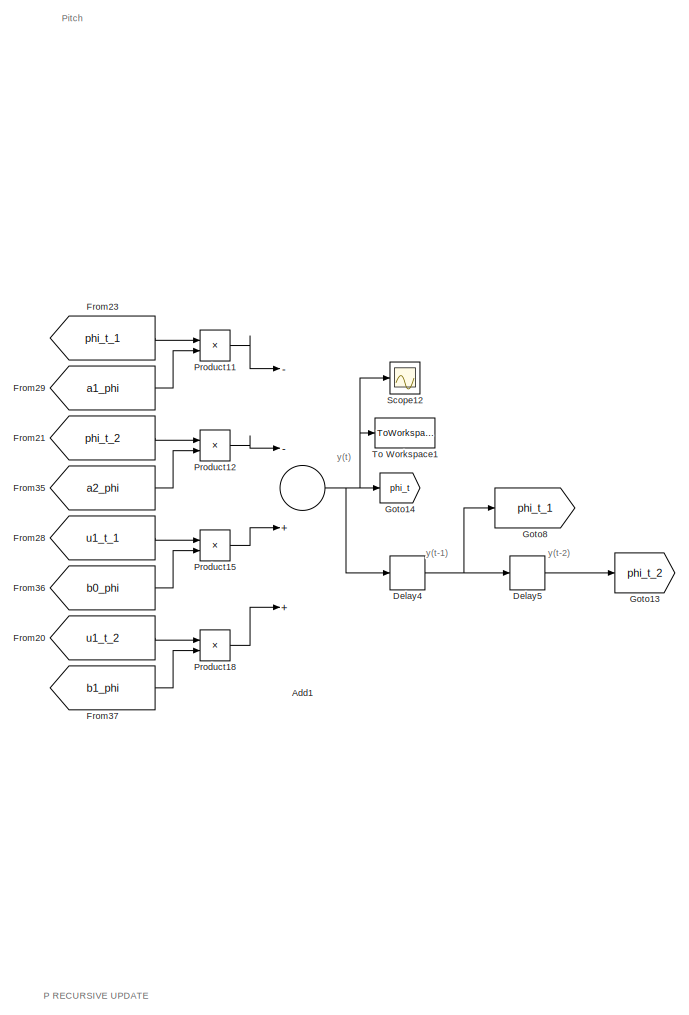
[diagram: root canvas - part 1/5, top center region]
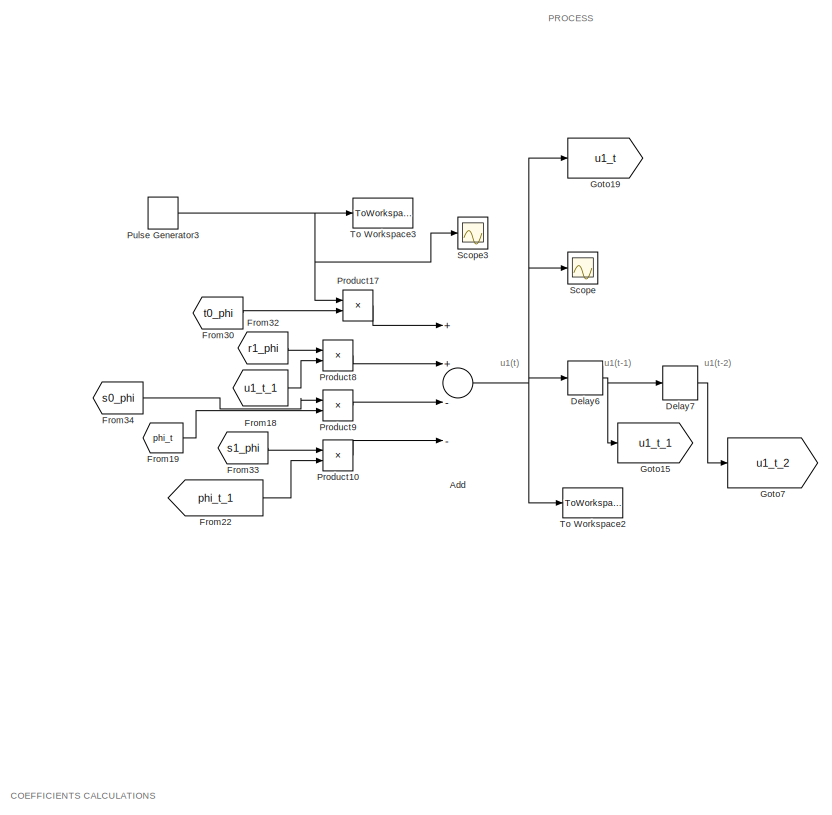
[diagram: root canvas - part 2/5, top left region]
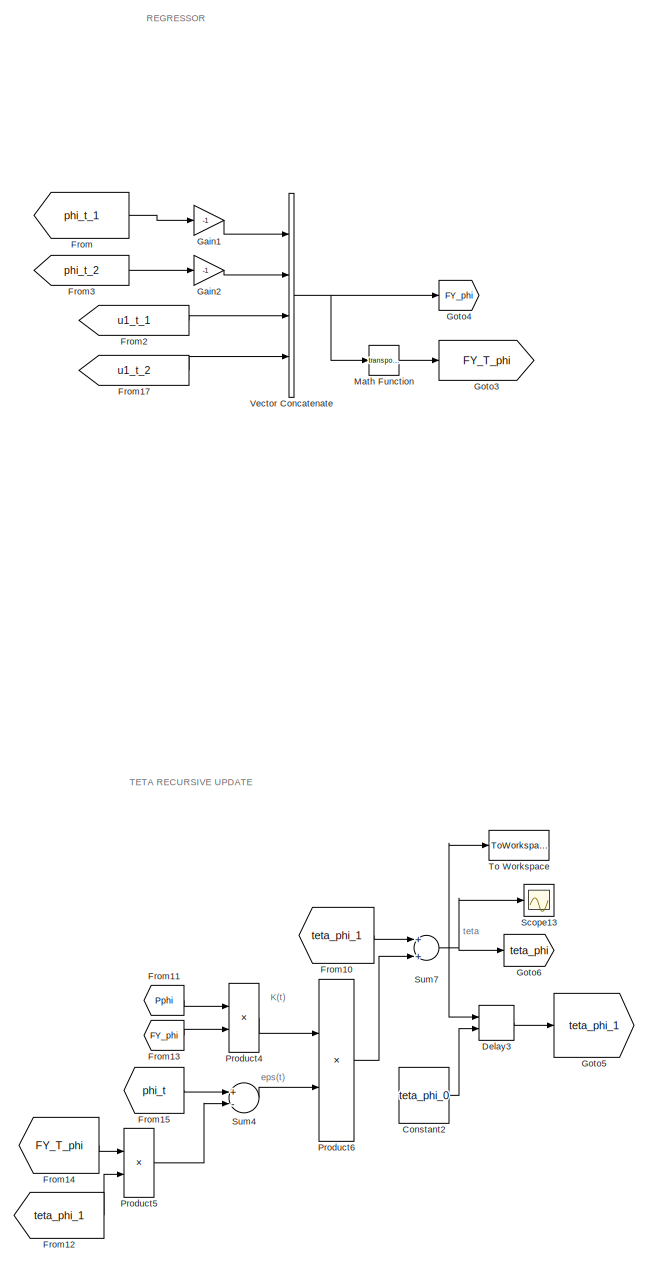
[diagram: root canvas - part 3/5, middle right region]
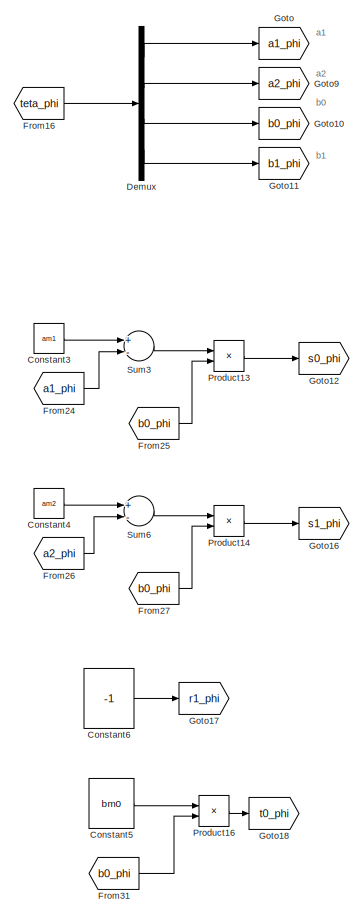
[diagram: root canvas - part 4/5, bottom left region]
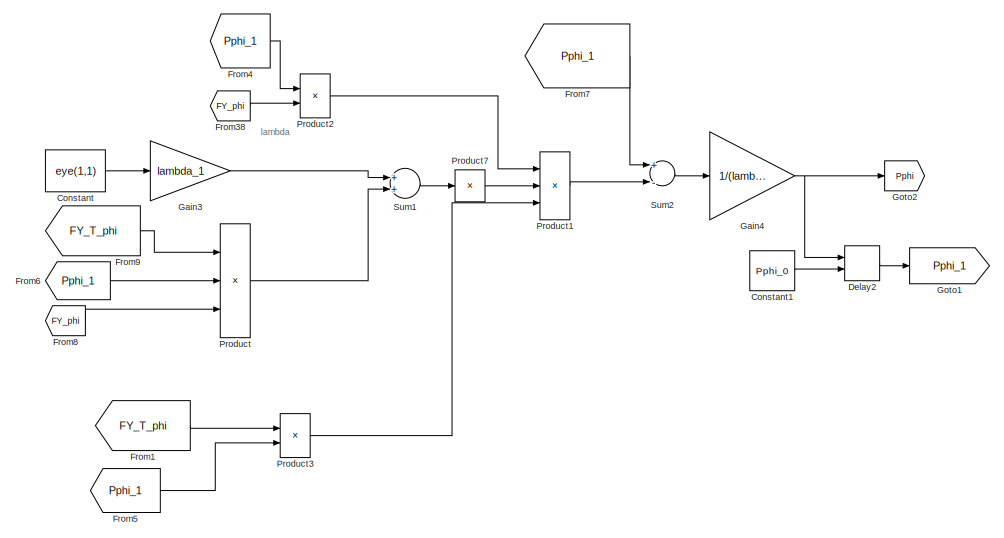
[diagram: root canvas - part 5/5, bottom center region]
MODEL slx_b9793fe7c534
KIND model
CONFIG AbsTol = auto
CONFIG EnableMultiTasking = off
CONFIG FixedStep = 10e-3
CONFIG MaxStep = auto
CONFIG MinStep = auto
CONFIG RelTol = 1e-3
CONFIG SampleTimeConstraint = Unconstrained
CONFIG Solver = VariableStepAuto
CONFIG SolverName = VariableStepAuto
CONFIG StartTime = 0.0
CONFIG StopTime = 100
BLOCK [Sum] Add
  InputSameDT = off
  Inputs = ++--
  OutDataTypeStr = Inherit: Inherit via internal rule
  Ports = [4, 1]
  SaturateOnIntegerOverflow = off
BLOCK [Sum] Add1
  InputSameDT = off
  Inputs = --++
  OutDataTypeStr = Inherit: Inherit via internal rule
  Ports = [4, 1]
  SaturateOnIntegerOverflow = off
BLOCK [Constant] Constant
  Value = eye(1,1)
BLOCK [Constant] Constant1
  Value = Pphi_0
BLOCK [Constant] Constant2
  Value = teta_phi_0
BLOCK [Constant] Constant3
  Value = am1
BLOCK [Constant] Constant4
  Value = am2
BLOCK [Constant] Constant5
  Value = bm0
BLOCK [Constant] Constant6
  Value = -1
BLOCK [Delay] Delay2
  DelayLength = 1
  InitialCondition = 0
  InitialConditionSource = Input port
  InputPortMap = u0,p4
  Ports = [2, 1]
BLOCK [Delay] Delay3
  DelayLength = 1
  InitialCondition = 0
  InitialConditionSource = Input port
  InputPortMap = u0,p4
  Ports = [2, 1]
BLOCK [Delay] Delay4
  DelayLength = 1
  InitialCondition = 0
  InputPortMap = u0
  Ports = [1, 1]
BLOCK [Delay] Delay5
  DelayLength = 1
  InitialCondition = 0
  InputPortMap = u0
  Ports = [1, 1]
BLOCK [Delay] Delay6
  DelayLength = 1
  InitialCondition = 0
  InputPortMap = u0
  Ports = [1, 1]
BLOCK [Delay] Delay7
  DelayLength = 1
  InitialCondition = 0
  InputPortMap = u0
  Ports = [1, 1]
BLOCK [Demux] Demux
  DisplayOption = bar
  Ports = [1, 4]
BLOCK [From] From
  GotoTag = phi_t_1
BLOCK [From] From1
  GotoTag = FY_T_phi
BLOCK [From] From10
  GotoTag = teta_phi_1
BLOCK [From] From11
  GotoTag = Pphi
BLOCK [From] From12
  GotoTag = teta_phi_1
BLOCK [From] From13
  GotoTag = FY_phi
BLOCK [From] From14
  GotoTag = FY_T_phi
BLOCK [From] From15
  GotoTag = phi_t
BLOCK [From] From16
  GotoTag = teta_phi
BLOCK [From] From17
  GotoTag = u1_t_2
BLOCK [From] From18
  GotoTag = u1_t_1
BLOCK [From] From19
  GotoTag = phi_t
BLOCK [From] From2
  GotoTag = u1_t_1
BLOCK [From] From20
  GotoTag = u1_t_2
BLOCK [From] From21
  GotoTag = phi_t_2
BLOCK [From] From22
  GotoTag = phi_t_1
BLOCK [From] From23
  GotoTag = phi_t_1
BLOCK [From] From24
  GotoTag = a1_phi
BLOCK [From] From25
  GotoTag = b0_phi
BLOCK [From] From26
  GotoTag = a2_phi
BLOCK [From] From27
  GotoTag = b0_phi
BLOCK [From] From28
  GotoTag = u1_t_1
BLOCK [From] From29
  GotoTag = a1_phi
BLOCK [From] From3
  GotoTag = phi_t_2
BLOCK [From] From30
  GotoTag = t0_phi
BLOCK [From] From31
  GotoTag = b0_phi
BLOCK [From] From32
  GotoTag = r1_phi
BLOCK [From] From33
  GotoTag = s1_phi
BLOCK [From] From34
  GotoTag = s0_phi
BLOCK [From] From35
  GotoTag = a2_phi
BLOCK [From] From36
  GotoTag = b0_phi
BLOCK [From] From37
  GotoTag = b1_phi
BLOCK [From] From38
  GotoTag = FY_phi
BLOCK [From] From4
  GotoTag = Pphi_1
BLOCK [From] From5
  GotoTag = Pphi_1
BLOCK [From] From6
  GotoTag = Pphi_1
BLOCK [From] From7
  GotoTag = Pphi_1
BLOCK [From] From8
  GotoTag = FY_phi
BLOCK [From] From9
  GotoTag = FY_T_phi
BLOCK [Gain] Gain1
  Gain = -1
  OutDataTypeStr = Inherit: Inherit via internal rule
  ParamDataTypeStr = Inherit: Inherit via internal rule
  SaturateOnIntegerOverflow = off
BLOCK [Gain] Gain2
  Gain = -1
  OutDataTypeStr = Inherit: Inherit via internal rule
  ParamDataTypeStr = Inherit: Inherit via internal rule
  SaturateOnIntegerOverflow = off
BLOCK [Gain] Gain3
  Gain = lambda_1
  OutDataTypeStr = Inherit: Inherit via internal rule
  ParamDataTypeStr = Inherit: Inherit via internal rule
  SaturateOnIntegerOverflow = off
BLOCK [Gain] Gain4
  Gain = 1/(lambda_1)
  OutDataTypeStr = Inherit: Inherit via internal rule
  ParamDataTypeStr = Inherit: Inherit via internal rule
  SaturateOnIntegerOverflow = off
BLOCK [Goto] Goto
  GotoTag = a1_phi
BLOCK [Goto] Goto1
  GotoTag = Pphi_1
BLOCK [Goto] Goto10
  GotoTag = b0_phi
BLOCK [Goto] Goto11
  GotoTag = b1_phi
BLOCK [Goto] Goto12
  GotoTag = s0_phi
BLOCK [Goto] Goto13
  GotoTag = phi_t_2
BLOCK [Goto] Goto14
  GotoTag = phi_t
BLOCK [Goto] Goto15
  GotoTag = u1_t_1
BLOCK [Goto] Goto16
  GotoTag = s1_phi
BLOCK [Goto] Goto17
  GotoTag = r1_phi
BLOCK [Goto] Goto18
  GotoTag = t0_phi
BLOCK [Goto] Goto19
  GotoTag = u1_t
BLOCK [Goto] Goto2
  GotoTag = Pphi
BLOCK [Goto] Goto3
  GotoTag = FY_T_phi
BLOCK [Goto] Goto4
  GotoTag = FY_phi
BLOCK [Goto] Goto5
  GotoTag = teta_phi_1
BLOCK [Goto] Goto6
  GotoTag = teta_phi
BLOCK [Goto] Goto7
  GotoTag = u1_t_2
BLOCK [Goto] Goto8
  GotoTag = phi_t_1
BLOCK [Goto] Goto9
  GotoTag = a2_phi
BLOCK [Math] Math Function
  Operator = transpose
  Ports = [1, 1]
BLOCK [Product] Product
  InputSameDT = off
  Inputs = 3
  Multiplication = Matrix(*)
  OutDataTypeStr = Inherit: Inherit via internal rule
  Ports = [3, 1]
  RndMeth = Floor
  SaturateOnIntegerOverflow = off
BLOCK [Product] Product1
  InputSameDT = off
  Inputs = 3
  Multiplication = Matrix(*)
  OutDataTypeStr = Inherit: Inherit via internal rule
  Ports = [3, 1]
  RndMeth = Floor
  SaturateOnIntegerOverflow = off
BLOCK [Product] Product10
  InputSameDT = off
  OutDataTypeStr = Inherit: Inherit via internal rule
  Ports = [2, 1]
  RndMeth = Floor
  SaturateOnIntegerOverflow = off
BLOCK [Product] Product11
  InputSameDT = off
  OutDataTypeStr = Inherit: Inherit via internal rule
  Ports = [2, 1]
  RndMeth = Floor
  SaturateOnIntegerOverflow = off
BLOCK [Product] Product12
  InputSameDT = off
  OutDataTypeStr = Inherit: Inherit via internal rule
  Ports = [2, 1]
  RndMeth = Floor
  SaturateOnIntegerOverflow = off
BLOCK [Product] Product13
  InputSameDT = off
  Inputs = */
  OutDataTypeStr = Inherit: Inherit via internal rule
  Ports = [2, 1]
  RndMeth = Floor
  SaturateOnIntegerOverflow = off
BLOCK [Product] Product14
  InputSameDT = off
  Inputs = */
  OutDataTypeStr = Inherit: Inherit via internal rule
  Ports = [2, 1]
  RndMeth = Floor
  SaturateOnIntegerOverflow = off
BLOCK [Product] Product15
  InputSameDT = off
  OutDataTypeStr = Inherit: Inherit via internal rule
  Ports = [2, 1]
  RndMeth = Floor
  SaturateOnIntegerOverflow = off
BLOCK [Product] Product16
  InputSameDT = off
  Inputs = */
  OutDataTypeStr = Inherit: Inherit via internal rule
  Ports = [2, 1]
  RndMeth = Floor
  SaturateOnIntegerOverflow = off
BLOCK [Product] Product17
  InputSameDT = off
  OutDataTypeStr = Inherit: Inherit via internal rule
  Ports = [2, 1]
  RndMeth = Floor
  SaturateOnIntegerOverflow = off
BLOCK [Product] Product18
  InputSameDT = off
  OutDataTypeStr = Inherit: Inherit via internal rule
  Ports = [2, 1]
  RndMeth = Floor
  SaturateOnIntegerOverflow = off
BLOCK [Product] Product2
  InputSameDT = off
  Multiplication = Matrix(*)
  OutDataTypeStr = Inherit: Inherit via internal rule
  Ports = [2, 1]
  RndMeth = Floor
  SaturateOnIntegerOverflow = off
BLOCK [Product] Product3
  InputSameDT = off
  Multiplication = Matrix(*)
  OutDataTypeStr = Inherit: Inherit via internal rule
  Ports = [2, 1]
  RndMeth = Floor
  SaturateOnIntegerOverflow = off
BLOCK [Product] Product4
  InputSameDT = off
  Multiplication = Matrix(*)
  OutDataTypeStr = Inherit: Inherit via internal rule
  Ports = [2, 1]
  RndMeth = Floor
  SaturateOnIntegerOverflow = off
BLOCK [Product] Product5
  InputSameDT = off
  Multiplication = Matrix(*)
  OutDataTypeStr = Inherit: Inherit via internal rule
  Ports = [2, 1]
  RndMeth = Floor
  SaturateOnIntegerOverflow = off
BLOCK [Product] Product6
  InputSameDT = off
  Multiplication = Matrix(*)
  OutDataTypeStr = Inherit: Inherit via internal rule
  Ports = [2, 1]
  RndMeth = Floor
  SaturateOnIntegerOverflow = off
BLOCK [Product] Product7
  InputSameDT = off
  Inputs = /
  Multiplication = Matrix(*)
  OutDataTypeStr = Inherit: Inherit via internal rule
  Ports = [1, 1]
  RndMeth = Floor
  SaturateOnIntegerOverflow = off
BLOCK [Product] Product8
  InputSameDT = off
  OutDataTypeStr = Inherit: Inherit via internal rule
  Ports = [2, 1]
  RndMeth = Floor
  SaturateOnIntegerOverflow = off
BLOCK [Product] Product9
  InputSameDT = off
  OutDataTypeStr = Inherit: Inherit via internal rule
  Ports = [2, 1]
  RndMeth = Floor
  SaturateOnIntegerOverflow = off
BLOCK [DiscretePulseGenerator] Pulse Generator3
  Period = 30
  Ports = [0, 1]
  PulseWidth = 15
  SampleTime = -1
BLOCK [Scope] Scope
  Floating = off
  NumInputPorts = 1
  Ports = [1]
  ScopeSpecificationString = Simulink.scopes.TimeScopeBlockCfg('CurrentConfiguration', extmgr.ConfigurationSet(extmgr.Configuration('Core','General UI',true),extmgr.Configuration('Core','Source UI',true),extmgr.Configuration('Sources','WiredSimulink',true,'DataLoggingVariableName','ScopeData1'),extmgr.Configuration('Visuals','Time Domain',true,'SerializedDisplays',{struct('MinYLimReal','-0.0447','MaxYLimReal','0.09583','YLabe...<+1389ch>
BLOCK [Scope] Scope12
  Floating = off
  NumInputPorts = 1
  Ports = [1]
  ScopeSpecificationString = Simulink.scopes.TimeScopeBlockCfg('CurrentConfiguration', extmgr.ConfigurationSet(extmgr.Configuration('Core','General UI',true),extmgr.Configuration('Core','Source UI',true),extmgr.Configuration('Sources','WiredSimulink',true,'DataLoggingVariableName','ScopeData2'),extmgr.Configuration('Visuals','Time Domain',true,'SerializedDisplays',{struct('MinYLimReal','-0.17241','MaxYLimReal','0.58531','YLab...<+1417ch>
BLOCK [Scope] Scope13
  Floating = off
  NumInputPorts = 1
  Ports = [1]
  ScopeSpecificationString = Simulink.scopes.TimeScopeBlockCfg('CurrentConfiguration', extmgr.ConfigurationSet(extmgr.Configuration('Core','General UI',true),extmgr.Configuration('Core','Source UI',true),extmgr.Configuration('Sources','WiredSimulink',true,'DataLoggingVariableName','ScopeData3'),extmgr.Configuration('Visuals','Time Domain',true,'SerializedDisplays',{struct('MinYLimReal','-1.5','MaxYLimReal','3.5','YLabelReal',...<+1414ch>
BLOCK [Scope] Scope3
  Floating = off
  NumInputPorts = 1
  Ports = [1]
  ScopeSpecificationString = Simulink.scopes.TimeScopeBlockCfg('CurrentConfiguration', extmgr.ConfigurationSet(extmgr.Configuration('Core','General UI',true),extmgr.Configuration('Core','Source UI',true),extmgr.Configuration('Sources','WiredSimulink',true),extmgr.Configuration('Visuals','Time Domain',true,'SerializedDisplays',{struct('MinYLimReal','-0.125','MaxYLimReal','1.125','YLabelReal','','MinYLimMag','0.00000','MaxYLimM...<+1377ch>
BLOCK [Sum] Sum1
  InputSameDT = off
  OutDataTypeStr = Inherit: Inherit via internal rule
  Ports = [2, 1]
  SaturateOnIntegerOverflow = off
BLOCK [Sum] Sum2
  InputSameDT = off
  Inputs = +-
  OutDataTypeStr = Inherit: Inherit via internal rule
  Ports = [2, 1]
  SaturateOnIntegerOverflow = off
BLOCK [Sum] Sum3
  InputSameDT = off
  Inputs = +-
  OutDataTypeStr = Inherit: Inherit via internal rule
  Ports = [2, 1]
  SaturateOnIntegerOverflow = off
BLOCK [Sum] Sum4
  InputSameDT = off
  Inputs = +-
  OutDataTypeStr = Inherit: Inherit via internal rule
  Ports = [2, 1]
  SaturateOnIntegerOverflow = off
BLOCK [Sum] Sum6
  InputSameDT = off
  Inputs = +-
  OutDataTypeStr = Inherit: Inherit via internal rule
  Ports = [2, 1]
  SaturateOnIntegerOverflow = off
BLOCK [Sum] Sum7
  InputSameDT = off
  OutDataTypeStr = Inherit: Inherit via internal rule
  Ports = [2, 1]
  SaturateOnIntegerOverflow = off
BLOCK [ToWorkspace] To Workspace
  FixptAsFi = on
  MaxDataPoints = inf
  Ports = [1]
  SampleTime = 1/fs
  VariableName = teta_phi
BLOCK [ToWorkspace] To Workspace1
  FixptAsFi = on
  MaxDataPoints = inf
  Ports = [1]
  SampleTime = 1/fs
  VariableName = phi
BLOCK [ToWorkspace] To Workspace2
  FixptAsFi = on
  MaxDataPoints = inf
  Ports = [1]
  SampleTime = 1/fs
  VariableName = u1
BLOCK [ToWorkspace] To Workspace3
  FixptAsFi = on
  MaxDataPoints = inf
  Ports = [1]
  SampleTime = 1/fs
  Save2DSignal = 2-D array (concatenate along first dimension)
  VariableName = uc_phi
BLOCK [Concatenate] Vector Concatenate
  NumInputs = 4
  Ports = [4, 1]
ANNOTATION (root): Pitch
ANNOTATION (root): COEFFICIENTS CALCULATIONS
ANNOTATION (root): P RECURSIVE UPDATE
ANNOTATION (root): PROCESS
ANNOTATION (root): REGRESSOR
ANNOTATION (root): TETA RECURSIVE UPDATE
ANNOTATION (root): K(t)
ANNOTATION (root): a1
ANNOTATION (root): a2
ANNOTATION (root): b0
ANNOTATION (root): b1
ANNOTATION (root): eps(t)
ANNOTATION (root): lambda
ANNOTATION (root): teta
ANNOTATION (root): u1(t)
ANNOTATION (root): u1(t-1)
ANNOTATION (root): u1(t-2)
ANNOTATION (root): y(t)
ANNOTATION (root): y(t-1)
ANNOTATION (root): y(t-2)
NET Add1:1 -> Delay4:1, Goto14:1, Scope12:1, To Workspace1:1
NET Add:1 -> Delay6:1, Goto19:1, Scope:1, To Workspace2:1
LINE Constant1:1 -> Delay2:2
LINE Constant2:1 -> Delay3:2
LINE Constant3:1 -> Sum3:1
LINE Constant4:1 -> Sum6:1
LINE Constant5:1 -> Product16:1
LINE Constant6:1 -> Goto17:1
LINE Constant:1 -> Gain3:1
LINE Delay2:1 -> Goto1:1
LINE Delay3:1 -> Goto5:1
NET Delay4:1 -> Delay5:1, Goto8:1
LINE Delay5:1 -> Goto13:1
NET Delay6:1 -> Delay7:1, Goto15:1
LINE Delay7:1 -> Goto7:1
LINE Demux:1 -> Goto:1
LINE Demux:2 -> Goto9:1
LINE Demux:3 -> Goto10:1
LINE Demux:4 -> Goto11:1
LINE From10:1 -> Sum7:1
LINE From11:1 -> Product4:1
LINE From12:1 -> Product5:2
LINE From13:1 -> Product4:2
LINE From14:1 -> Product5:1
LINE From15:1 -> Sum4:1
LINE From16:1 -> Demux:1
LINE From17:1 -> Vector Concatenate:4
LINE From18:1 -> Product8:2
LINE From19:1 -> Product9:2
LINE From1:1 -> Product3:1
LINE From20:1 -> Product18:1
LINE From21:1 -> Product12:1
LINE From22:1 -> Product10:2
LINE From23:1 -> Product11:1
LINE From24:1 -> Sum3:2
LINE From25:1 -> Product13:2
LINE From26:1 -> Sum6:2
LINE From27:1 -> Product14:2
LINE From28:1 -> Product15:1
LINE From29:1 -> Product11:2
LINE From2:1 -> Vector Concatenate:3
LINE From30:1 -> Product17:2
LINE From31:1 -> Product16:2
LINE From32:1 -> Product8:1
LINE From33:1 -> Product10:1
LINE From34:1 -> Product9:1
LINE From35:1 -> Product12:2
LINE From36:1 -> Product15:2
LINE From37:1 -> Product18:2
LINE From38:1 -> Product2:2
LINE From3:1 -> Gain2:1
LINE From4:1 -> Product2:1
LINE From5:1 -> Product3:2
LINE From6:1 -> Product:2
LINE From7:1 -> Sum2:1
LINE From8:1 -> Product:3
LINE From9:1 -> Product:1
LINE From:1 -> Gain1:1
LINE Gain1:1 -> Vector Concatenate:1
LINE Gain2:1 -> Vector Concatenate:2
LINE Gain3:1 -> Sum1:1
NET Gain4:1 -> Delay2:1, Goto2:1
LINE Math Function:1 -> Goto3:1
LINE Product10:1 -> Add:4
LINE Product11:1 -> Add1:1
LINE Product12:1 -> Add1:2
LINE Product13:1 -> Goto12:1
LINE Product14:1 -> Goto16:1
LINE Product15:1 -> Add1:3
LINE Product16:1 -> Goto18:1
LINE Product17:1 -> Add:1
LINE Product18:1 -> Add1:4
LINE Product1:1 -> Sum2:2
LINE Product2:1 -> Product1:1
LINE Product3:1 -> Product1:3
LINE Product4:1 -> Product6:1
LINE Product5:1 -> Sum4:2
LINE Product6:1 -> Sum7:2
LINE Product7:1 -> Product1:2
LINE Product8:1 -> Add:2
LINE Product9:1 -> Add:3
LINE Product:1 -> Sum1:2
NET Pulse Generator3:1 -> Product17:1, Scope3:1, To Workspace3:1
LINE Sum1:1 -> Product7:1
LINE Sum2:1 -> Gain4:1
LINE Sum3:1 -> Product13:1
LINE Sum4:1 -> Product6:2
LINE Sum6:1 -> Product14:1
NET Sum7:1 -> Delay3:1, Goto6:1, Scope13:1, To Workspace:1
NET Vector Concatenate:1 -> Goto4:1, Math Function:1
note: NET lines group one-source signal fan-out (src -> all destinations, sorted); 1:1 wires keep LINE
